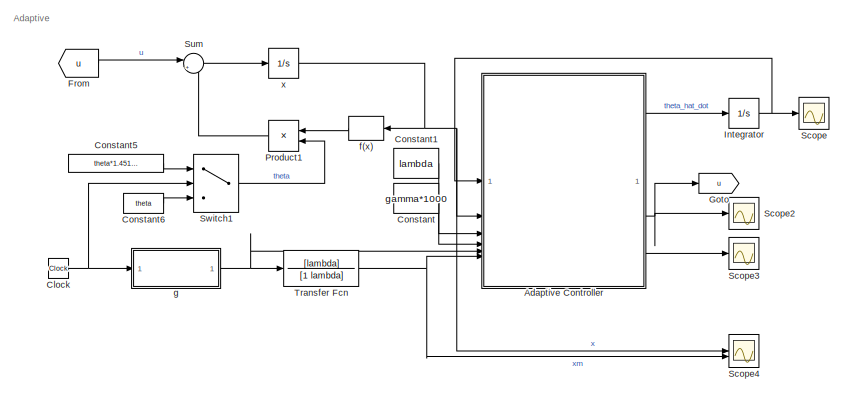
[diagram: root canvas - part 1/2, right side, full height]
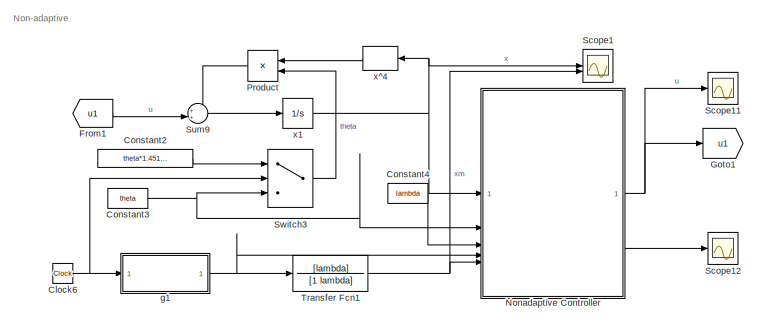
[diagram: root canvas - part 2/2, left side, full height]
MODEL slx_be85e5ca8a14
KIND model
CONFIG AbsTol = auto
CONFIG EnableMultiTasking = off
CONFIG FixedStep = auto
CONFIG InitFcn = lambda = 6;\ngamma = 1;\ntheta = 29 * pi / 180;
CONFIG MaxStep = 5e-3
CONFIG MinStep = auto
CONFIG RelTol = 1e-3
CONFIG SampleTimeConstraint = Unconstrained
CONFIG SolverName = VariableStepAuto
CONFIG StartTime = 0.0
CONFIG StopTime = 10
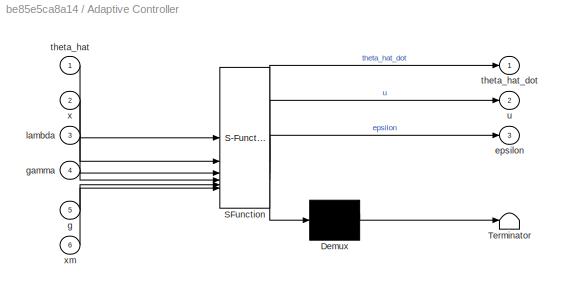
BLOCK [SubSystem] Adaptive Controller
  ErrorFcn = Stateflow.Translate.translate
  PermitHierarchicalResolution = ExplicitOnly
  SFBlockType = MATLAB Function
  TreatAsAtomicUnit = on
BLOCK [Demux] Adaptive Controller/ Demux 
  Outputs = 1
BLOCK [S-Function] Adaptive Controller/ SFunction 
  EnableBusSupport = off
  FunctionName = sf_sfun
  PortCounts = [6 4]
  SFcnIsStateOwnerBlock = off
  SFunctionDeploymentMode = off
  Tag = Stateflow S-Function 2
BLOCK [Terminator] Adaptive Controller/ Terminator 
BLOCK [Outport] Adaptive Controller/epsilon
  Port = 3
BLOCK [Inport] Adaptive Controller/g
  Port = 5
BLOCK [Inport] Adaptive Controller/gamma
  Port = 4
BLOCK [Inport] Adaptive Controller/lambda
  Port = 3
BLOCK [Inport] Adaptive Controller/theta_hat
BLOCK [Outport] Adaptive Controller/theta_hat_dot
BLOCK [Outport] Adaptive Controller/u
  Port = 2
BLOCK [Inport] Adaptive Controller/x
  Port = 2
BLOCK [Inport] Adaptive Controller/xm
  Port = 6
BLOCK [Clock] Clock
BLOCK [Clock] Clock6
BLOCK [Constant] Constant
  Value = gamma*1000
BLOCK [Constant] Constant1
  Value = lambda
BLOCK [Constant] Constant2
  Value = theta*1.4515755
BLOCK [Constant] Constant3
  Value = theta
BLOCK [Constant] Constant4
  Value = lambda
BLOCK [Constant] Constant5
  Value = theta*1.4515755
BLOCK [Constant] Constant6
  Value = theta
BLOCK [From] From
  GotoTag = u
BLOCK [From] From1
  GotoTag = u1
BLOCK [Goto] Goto
  GotoTag = u
BLOCK [Goto] Goto1
  GotoTag = u1
BLOCK [Integrator] Integrator
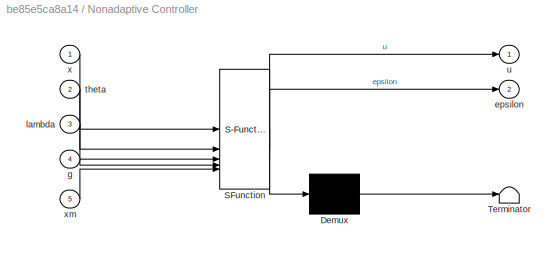
BLOCK [SubSystem] Nonadaptive Controller
  ErrorFcn = Stateflow.Translate.translate
  PermitHierarchicalResolution = ExplicitOnly
  SFBlockType = MATLAB Function
  TreatAsAtomicUnit = on
BLOCK [Demux] Nonadaptive Controller/ Demux 
  Outputs = 1
BLOCK [S-Function] Nonadaptive Controller/ SFunction 
  EnableBusSupport = off
  FunctionName = sf_sfun
  PortCounts = [5 3]
  SFcnIsStateOwnerBlock = off
  SFunctionDeploymentMode = off
  Tag = Stateflow S-Function 6
BLOCK [Terminator] Nonadaptive Controller/ Terminator 
BLOCK [Outport] Nonadaptive Controller/epsilon
  Port = 2
BLOCK [Inport] Nonadaptive Controller/g
  Port = 4
BLOCK [Inport] Nonadaptive Controller/lambda
  Port = 3
BLOCK [Inport] Nonadaptive Controller/theta
  Port = 2
BLOCK [Outport] Nonadaptive Controller/u
BLOCK [Inport] Nonadaptive Controller/x
BLOCK [Inport] Nonadaptive Controller/xm
  Port = 5
BLOCK [Product] Product
  NameLocation = top
BLOCK [Product] Product1
  NameLocation = top
BLOCK [Scope] Scope
  ActiveDisplayYMaximum = 1.0340767068659118
  ActiveDisplayYMinimum = -0.11489741187399018
  Floating = off
  GraphicalSettings = {"Style":{"BackgroundColor":[1,1,1],"AxesColor":[1,1,1],"LabelsColor":[0,0,0],"PreserveColors":false,"Visible":[true],"LineStyle":["-"],"LineWidth":[1.5],"BarWidth":[0.9],"LineColor":[[0,0,1]],"LineFaceAlpha":[1],"LineEdgeAlpha":[1],"Marker":["none"],"FontSize":8.5,"LineTrueColor":[[0,0,1]],"ChannelNames":"","DefaultLegendLabel":["Integrator"],"PlotType":"Auto","NumLinesForDisplays":[1],"OffsetVie...<+1707ch>
  MultipleDisplayCache = [{"MaxYLimMag":1.0340767068659118,"MaxYLimReal":1.0340767068659118,"MinYLimMag":0,"MinYLimReal":-0.11489741187399018,"PlotAsMagnitudePhase":false,"ShowGrid":true,"ShowLegend":true,"Title":"%<SignalLabel>","YLabel":""}]
  NumInputPorts = 1
  ScopeFrameLocation = window
  ShowLegend = on
  WasSavedAsWebScope = on
  WindowPosition = [78.000000,64.000000,560.000000,420.000000,]
BLOCK [Scope] Scope1
  ActiveDisplayYMaximum = 7.9258471592364632
  ActiveDisplayYMinimum = -0.88064968435960678
  DataLoggingVariableName = ScopeData1
  Floating = off
  GraphicalSettings = {"Style":{"BackgroundColor":[1,1,1],"AxesColor":[1,1,1],"LabelsColor":[0,0,0],"PreserveColors":false,"Visible":[true,true],"LineStyle":["-",":"],"LineWidth":[1.5,1.5],"BarWidth":[0.9,0.9],"LineColor":[[0,0,1],[1,0,0]],"LineFaceAlpha":[1,1],"LineEdgeAlpha":[1,1],"Marker":["none","none"],"FontSize":8.5,"LineTrueColor":[[0,0,1],[1,0,0]],"ChannelNames":"","DefaultLegendLabel":["x","xm"],"PlotType":"Au...<+1842ch>
  MultipleDisplayCache = [{"MaxYLimMag":7.9258471592364632,"MaxYLimReal":7.9258471592364632,"MinYLimMag":0,"MinYLimReal":-0.88064968435960678,"PlotAsMagnitudePhase":false,"ShowGrid":true,"ShowLegend":true,"Title":"%<SignalLabel>","YLabel":""}]
  NumInputPorts = 2
  ScopeFrameLocation = window
  ShowLegend = on
  WasSavedAsWebScope = on
  WindowPosition = [682.000000,199.000000,560.000000,429.000000,]
BLOCK [Scope] Scope11
  ActiveDisplayYMaximum = 1
  ActiveDisplayYMinimum = -1
  DataLoggingVariableName = ScopeData11
  Floating = off
  GraphicalSettings = {"Style":{"BackgroundColor":[1,1,1],"AxesColor":[1,1,1],"LabelsColor":[0,0,0],"PreserveColors":false,"Visible":[true],"LineStyle":["-"],"LineWidth":[1.5],"BarWidth":[0.9],"LineColor":[[0,0,1]],"LineFaceAlpha":[1],"LineEdgeAlpha":[1],"Marker":["none"],"FontSize":8.5,"LineTrueColor":[[0,0,1]],"ChannelNames":"","DefaultLegendLabel":["u"],"PlotType":"Auto","NumLinesForDisplays":[1],"OffsetView":true,"...<+1785ch>
  MultipleDisplayCache = [{"MaxYLimMag":1,"MaxYLimReal":1,"MinYLimMag":0,"MinYLimReal":-1,"PlotAsMagnitudePhase":false,"ShowGrid":true,"ShowLegend":true,"Title":"%<SignalLabel>","YLabel":""}]
  NumInputPorts = 1
  ScopeFrameLocation = window
  ShowLegend = on
  WasSavedAsWebScope = on
  WindowPosition = [766.000000,244.000000,560.000000,434.000000,]
BLOCK [Scope] Scope12
  ActiveDisplayYMaximum = 0.72855434989019052
  ActiveDisplayYMinimum = -6.5569891490117023
  DataLoggingVariableName = ScopeData12
  Floating = off
  GraphicalSettings = {"Style":{"BackgroundColor":[1,1,1],"AxesColor":[1,1,1],"LabelsColor":[0,0,0],"PreserveColors":false,"Visible":[true],"LineStyle":["-"],"LineWidth":[1.5],"BarWidth":[0.9],"LineColor":[[0,0,1]],"LineFaceAlpha":[1],"LineEdgeAlpha":[1],"Marker":["none"],"FontSize":8.5,"LineTrueColor":[[0,0,1]],"ChannelNames":"","DefaultLegendLabel":["Nonadaptive Controller/epsilon"],"PlotType":"Auto","NumLinesForDisp...<+1846ch>
  MultipleDisplayCache = [{"MaxYLimMag":6.5569891490117023,"MaxYLimReal":0.72855434989019052,"MinYLimMag":0,"MinYLimReal":-6.5569891490117023,"PlotAsMagnitudePhase":false,"ShowGrid":true,"ShowLegend":true,"Title":"%<SignalLabel>","YLabel":""}]
  NumInputPorts = 1
  ScopeFrameLocation = window
  ShowLegend = on
  WasSavedAsWebScope = on
  WindowPosition = [335.000000,167.000000,560.000000,429.000000,]
BLOCK [Scope] Scope2
  ActiveDisplayYMaximum = 8.3445579885942127
  ActiveDisplayYMinimum = -15.101021897347925
  DataLoggingVariableName = ScopeData2
  Floating = off
  GraphicalSettings = {"Style":{"BackgroundColor":[1,1,1],"AxesColor":[1,1,1],"LabelsColor":[0,0,0],"PreserveColors":false,"Visible":[true],"LineStyle":["-"],"LineWidth":[1.5],"BarWidth":[0.9],"LineColor":[[0,0,1]],"LineFaceAlpha":[1],"LineEdgeAlpha":[1],"Marker":["none"],"FontSize":8.5,"LineTrueColor":[[0,0,1]],"ChannelNames":"","DefaultLegendLabel":["Adaptive Controller/u"],"PlotType":"Auto","NumLinesForDisplays":[1]...<+1829ch>
  MultipleDisplayCache = [{"MaxYLimMag":15.101021897347925,"MaxYLimReal":8.3445579885942127,"MinYLimMag":0,"MinYLimReal":-15.101021897347925,"PlotAsMagnitudePhase":false,"ShowGrid":true,"ShowLegend":true,"Title":"%<SignalLabel>","YLabel":""}]
  NumInputPorts = 1
  ScopeFrameLocation = window
  ShowLegend = on
  WasSavedAsWebScope = on
  WindowPosition = [716.000000,257.000000,560.000000,430.000000,]
BLOCK [Scope] Scope3
  ActiveDisplayYMaximum = 0.027124637570590915
  ActiveDisplayYMinimum = -0.041830356929225987
  DataLoggingVariableName = ScopeData3
  Floating = off
  GraphicalSettings = {"Style":{"BackgroundColor":[1,1,1],"AxesColor":[1,1,1],"LabelsColor":[0,0,0],"PreserveColors":false,"Visible":[true],"LineStyle":["-"],"LineWidth":[1.5],"BarWidth":[0.9],"LineColor":[[0,0,1]],"LineFaceAlpha":[1],"LineEdgeAlpha":[1],"Marker":["none"],"FontSize":8.5,"LineTrueColor":[[0,0,1]],"ChannelNames":"","DefaultLegendLabel":["Adaptive Controller/epsilon"],"PlotType":"Auto","NumLinesForDisplay...<+1852ch>
  MultipleDisplayCache = [{"MaxYLimMag":0.041830356929225987,"MaxYLimReal":0.027124637570590915,"MinYLimMag":0,"MinYLimReal":-0.041830356929225987,"PlotAsMagnitudePhase":false,"ShowGrid":true,"ShowLegend":true,"Title":"%<SignalLabel>","YLabel":""}]
  NumInputPorts = 1
  ScopeFrameLocation = window
  ShowLegend = on
  WasSavedAsWebScope = on
  WindowPosition = [716.000000,257.000000,560.000000,430.000000,]
BLOCK [Scope] Scope4
  ActiveDisplayYMaximum = 2.182924059811957
  ActiveDisplayYMinimum = -0.24254711775688406
  DataLoggingVariableName = ScopeData4
  Floating = off
  GraphicalSettings = {"Style":{"BackgroundColor":[1,1,1],"AxesColor":[1,1,1],"LabelsColor":[0,0,0],"PreserveColors":false,"Visible":[true,true],"LineStyle":["-",":"],"LineWidth":[1.5,1.5],"BarWidth":[0.9,0.9],"LineColor":[[0,0,1],[1,0,0]],"LineFaceAlpha":[1,1],"LineEdgeAlpha":[1,1],"Marker":["none","none"],"FontSize":8.5,"LineTrueColor":[[0,0,1],[1,0,0]],"ChannelNames":"","DefaultLegendLabel":["x","xm"],"PlotType":"Au...<+1844ch>
  MultipleDisplayCache = [{"MaxYLimMag":2.182924059811957,"MaxYLimReal":2.182924059811957,"MinYLimMag":0,"MinYLimReal":-0.24254711775688406,"PlotAsMagnitudePhase":false,"ShowGrid":true,"ShowLegend":true,"Title":"%<SignalLabel>","YLabel":""}]
  NumInputPorts = 2
  ScopeFrameLocation = window
  ShowLegend = on
  WasSavedAsWebScope = on
  WindowPosition = [716.000000,257.000000,560.000000,429.000000,]
BLOCK [Sum] Sum
  Inputs = |++
BLOCK [Sum] Sum9
  Inputs = ++|
BLOCK [Switch] Switch1
  Criteria = u2 > Threshold
  InputSameDT = off
  SaturateOnIntegerOverflow = off
  Threshold = 5
BLOCK [Switch] Switch3
  Criteria = u2 > Threshold
  InputSameDT = off
  SaturateOnIntegerOverflow = off
  Threshold = 5
BLOCK [TransferFcn] Transfer Fcn
  Denominator = [1 lambda]
  Numerator = [lambda]
BLOCK [TransferFcn] Transfer Fcn1
  Denominator = [1 lambda]
  Numerator = [lambda]
BLOCK [MATLABFcn] f(x)
  MATLABFcn = u^4
  NameLocation = top
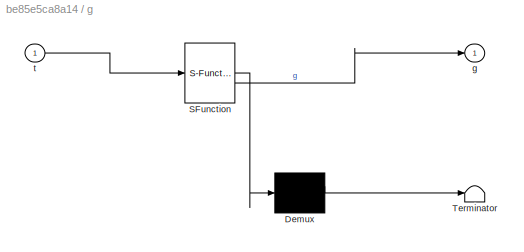
BLOCK [SubSystem] g
  ErrorFcn = Stateflow.Translate.translate
  PermitHierarchicalResolution = ExplicitOnly
  SFBlockType = MATLAB Function
  TreatAsAtomicUnit = on
BLOCK [Demux] g/ Demux 
  Outputs = 1
BLOCK [S-Function] g/ SFunction 
  EnableBusSupport = off
  FunctionName = sf_sfun
  PortCounts = [1 2]
  SFcnIsStateOwnerBlock = off
  SFunctionDeploymentMode = off
  Tag = Stateflow S-Function 1
BLOCK [Terminator] g/ Terminator 
BLOCK [Outport] g/g
BLOCK [Inport] g/t
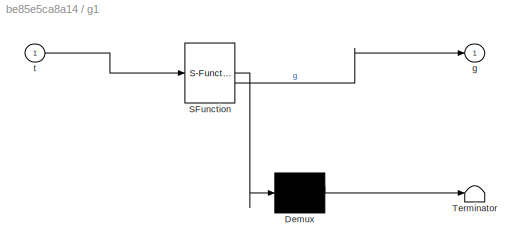
BLOCK [SubSystem] g1
  ErrorFcn = Stateflow.Translate.translate
  PermitHierarchicalResolution = ExplicitOnly
  SFBlockType = MATLAB Function
  TreatAsAtomicUnit = on
BLOCK [Demux] g1/ Demux 
  Outputs = 1
BLOCK [S-Function] g1/ SFunction 
  EnableBusSupport = off
  FunctionName = sf_sfun
  PortCounts = [1 2]
  SFcnIsStateOwnerBlock = off
  SFunctionDeploymentMode = off
  Tag = Stateflow S-Function 7
BLOCK [Terminator] g1/ Terminator 
BLOCK [Outport] g1/g
BLOCK [Inport] g1/t
BLOCK [Integrator] x
BLOCK [Integrator] x1
BLOCK [MATLABFcn] x^4
  MATLABFcn = u^4
  NameLocation = top
ANNOTATION (root): Adaptive
ANNOTATION (root): Non-adaptive
LINE Adaptive Controller:1 -> Integrator:1
NET Adaptive Controller:2 -> Goto:1, Scope2:1
LINE Adaptive Controller:3 -> Scope3:1
NET Clock6:1 -> Switch3:2, g1:1
NET Clock:1 -> Switch1:2, g:1
LINE Constant1:1 -> Adaptive Controller:3
LINE Constant2:1 -> Switch3:1
NET Constant3:1 -> Nonadaptive Controller:2, Switch3:3
LINE Constant4:1 -> Nonadaptive Controller:3
LINE Constant5:1 -> Switch1:1
LINE Constant6:1 -> Switch1:3
LINE Constant:1 -> Adaptive Controller:4
LINE From1:1 -> Sum9:2
LINE From:1 -> Sum:1
NET Integrator:1 -> Adaptive Controller:1, Scope:1
NET Nonadaptive Controller:1 -> Goto1:1, Scope11:1
LINE Nonadaptive Controller:2 -> Scope12:1
LINE Product1:1 -> Sum:2
LINE Product:1 -> Sum9:1
LINE Sum9:1 -> x1:1
LINE Sum:1 -> x:1
LINE Switch1:1 -> Product1:2
LINE Switch3:1 -> Product:2
NET Transfer Fcn1:1 -> Nonadaptive Controller:5, Scope1:2
NET Transfer Fcn:1 -> Adaptive Controller:6, Scope4:2
LINE f(x):1 -> Product1:1
NET g1:1 -> Nonadaptive Controller:4, Transfer Fcn1:1
NET g:1 -> Adaptive Controller:5, Transfer Fcn:1
NET x1:1 -> Nonadaptive Controller:1, Scope1:1, x^4:1
NET x:1 -> Adaptive Controller:2, Scope4:1, f(x):1
LINE x^4:1 -> Product:1
note: NET lines group one-source signal fan-out (src -> all destinations, sorted); 1:1 wires keep LINE
CHART g states=1 transitions=1
  STATE_LABEL 'eML_blk_kernel()'
  STATE_LABEL 'SCRIPT:\nfunction g = reference_signal(t)\n    g = cos(2*t) .* sin(t) + 1;\nend'
CHART Adaptive Controller states=1 transitions=1
  STATE_LABEL 'eML_blk_kernel()'
  STATE_LABEL 'SCRIPT:\nfunction [theta_hat_dot, u, epsilon] = adaptive_controller(theta_hat, x, lambda, gamma, g, xm)\n\n    f_x = x^4;\n    \n    epsilon = xm - x;\n    \n    theta_hat_dot = -gamma * f_x * epsilon;\n\n    u = -theta_hat * f_x - lambda * x + lambda * g;\n    \nend'
CHART Nonadaptive Controller states=1 transitions=1
  STATE_LABEL 'eML_blk_kernel()'
  STATE_LABEL 'SCRIPT:\nfunction [u, epsilon] =nonadaptive_controller(x, theta, lambda, g, xm)\n\n    f_x = x^4;\n    \n    epsilon = xm - x;\n\n    u = -theta * f_x - lambda * x + lambda * g;\n    \nend'
CHART g1 states=1 transitions=1
  STATE_LABEL 'eML_blk_kernel()'
  STATE_LABEL 'SCRIPT:\nfunction g = reference_signal(t)\n    g = cos(2*t) .* sin(t) + 1;\nend'
CHART  states=0 transitions=0
CHART  states=0 transitions=0
CHART  states=0 transitions=0
CHART  states=0 transitions=0
